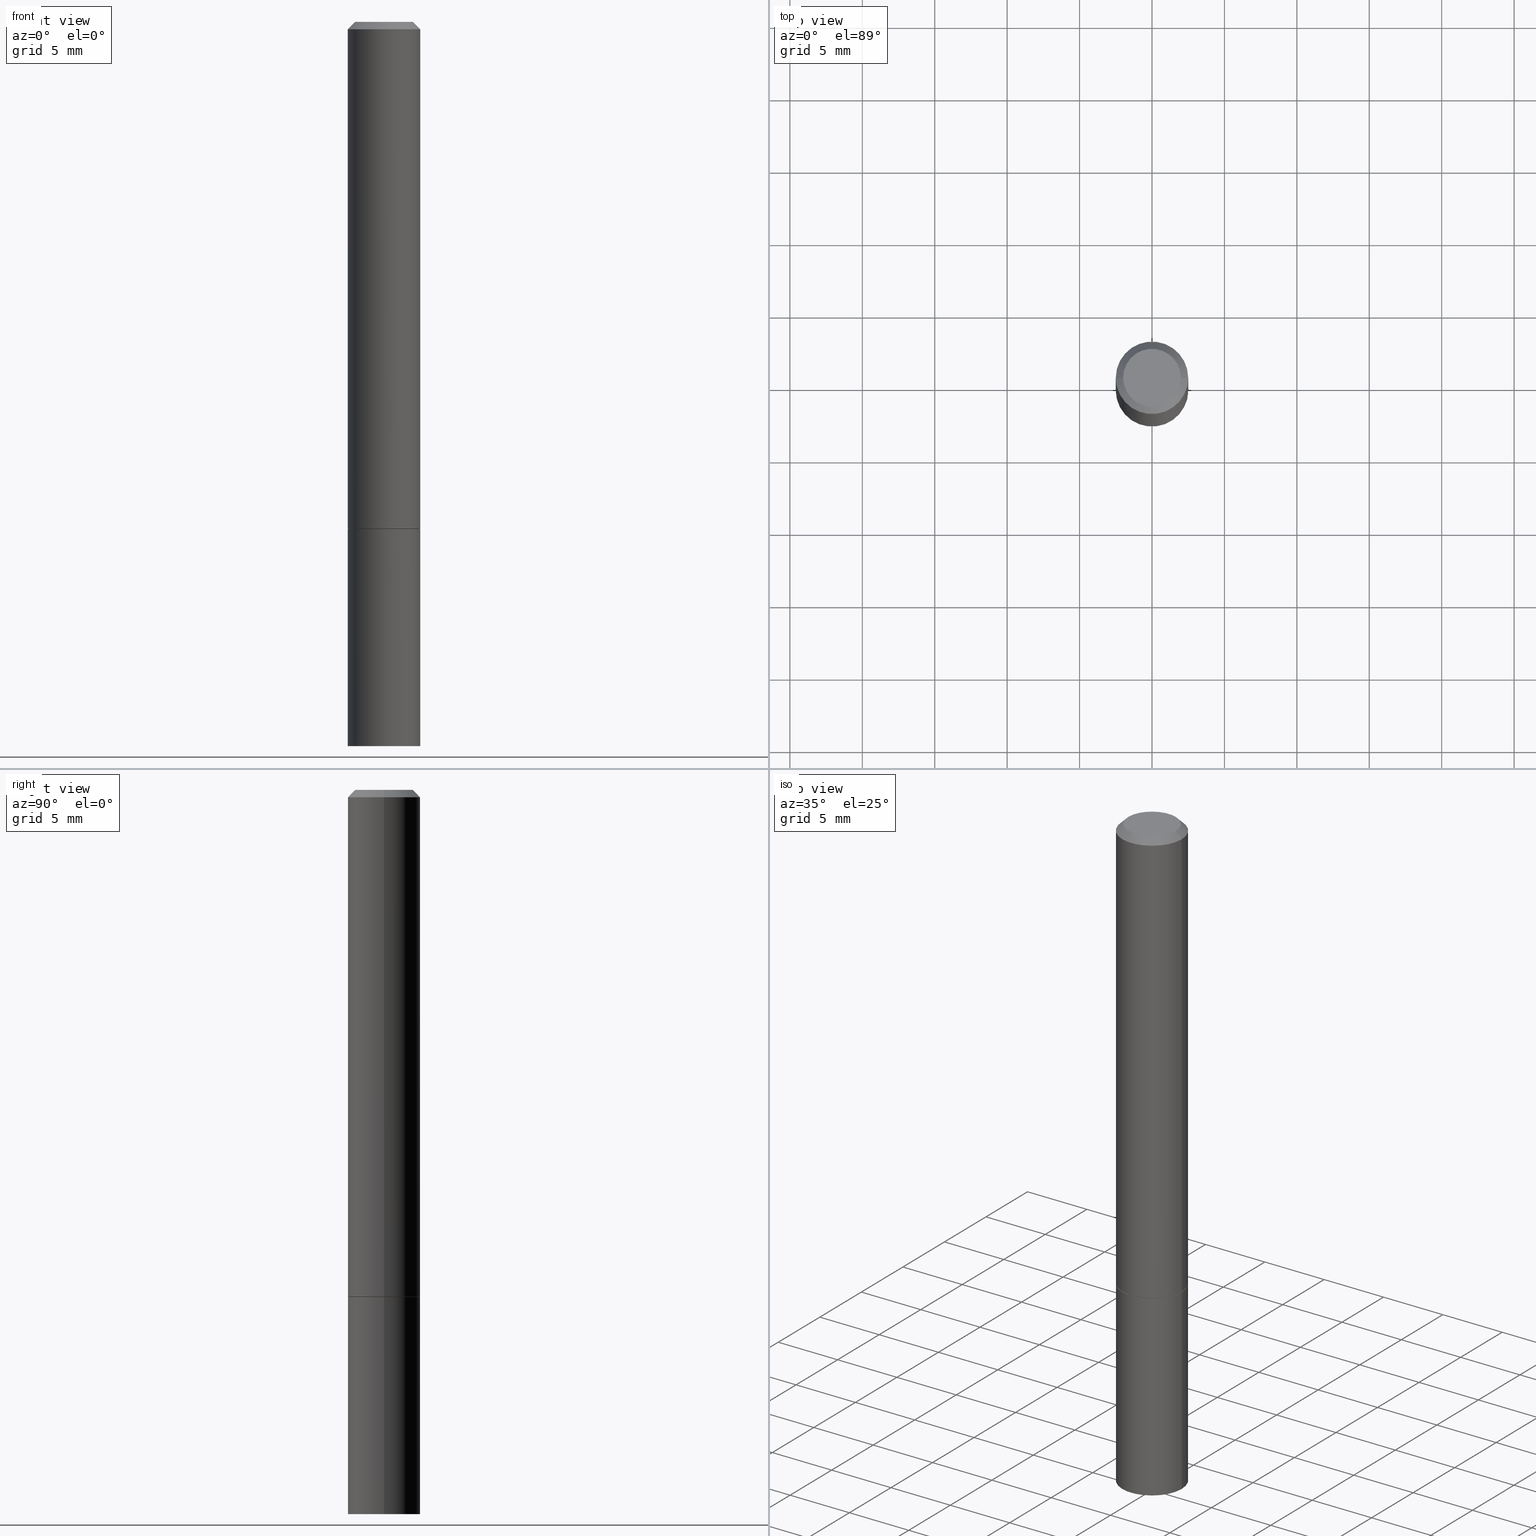
[diagram: canonical four-view strip — front | top / right | iso, engineering-drawing reading convention]
A machine part, canonical four-view strip (front | top / right | iso — engineering-drawing reading convention). The complete STEP part file that produces these views, byte-faithful:
ISO-10303-21;
HEADER;
FILE_DESCRIPTION (( 'STEP AP203' ),
    '1' );
FILE_NAME ('83073.STEP',
    '2024-02-29T23:24:01',
    ( '' ),
    ( '' ),
    'SwSTEP 2.0',
    'SolidWorks 2023',
    '' );
FILE_SCHEMA (( 'CONFIG_CONTROL_DESIGN' ));
ENDSEC;

DATA;
#1 = APPROVAL_STATUS ( 'not_yet_approved' ) ;
#2 = VECTOR ( 'NONE', #243, 39.37007874015748143 ) ;
#3 = ORIENTED_EDGE ( 'NONE', *, *, #264, .F. ) ;
#4 = CALENDAR_DATE ( 2024, 29, 2 ) ;
#5 = CARTESIAN_POINT ( 'NONE',  ( 3.367165999236314681E-29, -4.807420655453126643E-15, -1.376900000000000013 ) ) ;
#6 = CARTESIAN_POINT ( 'NONE',  ( 0.09744999999999999496, -5.491401849732496985E-15, -1.377900000000000125 ) ) ;
#7 = DATE_AND_TIME ( #195, #347 ) ;
#8 = LINE ( 'NONE', #6, #16 ) ;
#9 = CC_DESIGN_PERSON_AND_ORGANIZATION_ASSIGNMENT ( #281, #136, ( #229 ) ) ;
#10 = CARTESIAN_POINT ( 'NONE',  ( -0.09844999999999999585, -5.142417252796532568E-15, -1.968500000000000139 ) ) ;
#11 = FACE_OUTER_BOUND ( 'NONE', #297, .T. ) ;
#12 =( GEOMETRIC_REPRESENTATION_CONTEXT ( 3 ) GLOBAL_UNCERTAINTY_ASSIGNED_CONTEXT ( ( #95 ) ) GLOBAL_UNIT_ASSIGNED_CONTEXT ( ( #69, #184, #134 ) ) REPRESENTATION_CONTEXT ( 'NONE', 'WORKASPACE' ) );
#13 = ORGANIZATION ( 'UNSPECIFIED', 'UNSPECIFIED', '' ) ;
#14 = CC_DESIGN_PERSON_AND_ORGANIZATION_ASSIGNMENT ( #202, #197, ( #356 ) ) ;
#15 = DIRECTION ( 'NONE',  ( -2.445468806185136597E-29, 3.491481338843145583E-15, 1.000000000000000000 ) ) ;
#16 = VECTOR ( 'NONE', #231, 39.37007874015748143 ) ;
#17 = CARTESIAN_POINT ( 'NONE',  ( 5.478134220644863581E-16, 0.07844999999999982543, -2.739067110322441651E-16 ) ) ;
#18 = EDGE_CURVE ( 'NONE', #353, #139, #183, .T. ) ;
#19 = DIRECTION ( 'NONE',  ( 2.438088387897960049E-29, -3.491481338843145188E-15, -1.000000000000000000 ) ) ;
#20 = ORIENTED_EDGE ( 'NONE', *, *, #42, .T. ) ;
#21 = DIRECTION ( 'NONE',  ( 1.000000000000000000, -6.982962677686266711E-15, 0.000000000000000000 ) ) ;
#22 = ORIENTED_EDGE ( 'NONE', *, *, #67, .T. ) ;
#23 = CLOSED_SHELL ( 'NONE', ( #242, #237, #329, #343 ) ) ;
#24 = CIRCLE ( 'NONE', #101, 0.09844999999999999585 ) ;
#25 = ADVANCED_FACE ( 'NONE', ( #156 ), #174, .T. ) ;
#26 = DIRECTION ( 'NONE',  ( 1.000000000000000000, -6.982962677686266711E-15, 4.876176775795936353E-29 ) ) ;
#27 = DIRECTION ( 'NONE',  ( -2.445468806185136597E-29, 3.491481338843145583E-15, 1.000000000000000000 ) ) ;
#28 = SECURITY_CLASSIFICATION_LEVEL ( 'unclassified' ) ;
#29 = ORIENTED_EDGE ( 'NONE', *, *, #258, .F. ) ;
#30 = DATE_AND_TIME ( #341, #262 ) ;
#31 = VERTEX_POINT ( 'NONE', #133 ) ;
#32 = COORDINATED_UNIVERSAL_TIME_OFFSET ( 5, 0, .BEHIND. ) ;
#33 = CARTESIAN_POINT ( 'NONE',  ( 0.09844999999999980156, -7.452456546574689274E-16, -0.02000000000000003164 ) ) ;
#34 = DIRECTION ( 'NONE',  ( -1.000000000000000000, 6.982962677686266711E-15, 0.000000000000000000 ) ) ;
#35 = CARTESIAN_POINT ( 'NONE',  ( -0.09844999999999980156, 6.176430488413486702E-16, -0.02000000000000003164 ) ) ;
#36 = AXIS2_PLACEMENT_3D ( 'NONE', #277, #27, #250 ) ;
#37 = DIRECTION ( 'NONE',  ( 1.000000000000000000, -6.982962677686265922E-15, 4.876176775795936914E-29 ) ) ;
#38 = MANIFOLD_SOLID_BREP ( 'Body-Move/Copy2[2]', #70 ) ;
#39 = DIRECTION ( 'NONE',  ( 1.000000000000000000, -6.982962677686266711E-15, 0.000000000000000000 ) ) ;
#40 = MANIFOLD_SOLID_BREP ( 'Body-Move/Copy2[1]', #23 ) ;
#41 = AXIS2_PLACEMENT_3D ( 'NONE', #236, #147, #348 ) ;
#42 = EDGE_CURVE ( 'NONE', #302, #209, #284, .T. ) ;
#43 = PLANE ( 'NONE',  #96 ) ;
#44 = VECTOR ( 'NONE', #254, 39.37007874015748143 ) ;
#45 = LINE ( 'NONE', #152, #2 ) ;
#46 = DIRECTION ( 'NONE',  ( 1.000000000000000000, -6.982962677686265922E-15, 0.000000000000000000 ) ) ;
#47 = EDGE_LOOP ( 'NONE', ( #308, #354, #105, #50 ) ) ;
#48 = VECTOR ( 'NONE', #103, 39.37007874015748143 ) ;
#49 = COORDINATED_UNIVERSAL_TIME_OFFSET ( 5, 0, .BEHIND. ) ;
#50 = ORIENTED_EDGE ( 'NONE', *, *, #130, .F. ) ;
#51 = DATE_TIME_ROLE ( 'classification_date' ) ;
#52 = ORIENTED_EDGE ( 'NONE', *, *, #208, .T. ) ;
#53 = COORDINATED_UNIVERSAL_TIME_OFFSET ( 5, 0, .BEHIND. ) ;
#54 = APPROVAL ( #309, 'UNSPECIFIED' ) ;
#55 = ORIENTED_EDGE ( 'NONE', *, *, #191, .T. ) ;
#56 = DATE_AND_TIME ( #141, #352 ) ;
#57 = FACE_OUTER_BOUND ( 'NONE', #66, .T. ) ;
#58 = DATE_AND_TIME ( #138, #168 ) ;
#59 = CARTESIAN_POINT ( 'NONE',  ( -0.09744999999999999496, -4.113189786445530146E-15, -1.377900000000000125 ) ) ;
#60 = ADVANCED_FACE ( 'NONE', ( #364 ), #338, .T. ) ;
#61 = CYLINDRICAL_SURFACE ( 'NONE', #260, 0.09844999999999988483 ) ;
#62 = DIRECTION ( 'NONE',  ( 1.000000000000000000, -6.982962677686266711E-15, 0.000000000000000000 ) ) ;
#63 = DIRECTION ( 'NONE',  ( -2.445468806185136597E-29, 3.491481338843145583E-15, 1.000000000000000000 ) ) ;
#64 = ADVANCED_FACE ( 'NONE', ( #57 ), #153, .T. ) ;
#65 = VECTOR ( 'NONE', #131, 39.37007874015748143 ) ;
#66 = EDGE_LOOP ( 'NONE', ( #75, #22, #279, #181 ) ) ;
#67 = EDGE_CURVE ( 'NONE', #209, #322, #204, .T. ) ;
#68 = CARTESIAN_POINT ( 'NONE',  ( 4.813905344975441835E-29, -6.872981015512731707E-15, -1.968500000000000139 ) ) ;
#69 =( CONVERSION_BASED_UNIT ( 'INCH', #301 ) LENGTH_UNIT ( ) NAMED_UNIT ( #326 ) );
#70 = CLOSED_SHELL ( 'NONE', ( #60, #104, #64, #109, #176, #25, #296, #363 ) ) ;
#71 = AXIS2_PLACEMENT_3D ( 'NONE', #256, #291, #62 ) ;
#72 = ORIENTED_EDGE ( 'NONE', *, *, #273, .T. ) ;
#73 = DIRECTION ( 'NONE',  ( 2.438088387897960049E-29, -3.491481338843145188E-15, -1.000000000000000000 ) ) ;
#74 = EDGE_CURVE ( 'NONE', #160, #223, #116, .T. ) ;
#75 = ORIENTED_EDGE ( 'NONE', *, *, #191, .F. ) ;
#76 = PERSON_AND_ORGANIZATION ( #349, #13 ) ;
#77 = CARTESIAN_POINT ( 'NONE',  ( 3.369611468042499724E-29, -4.810912136791970439E-15, -1.377900000000000125 ) ) ;
#78 = AXIS2_PLACEMENT_3D ( 'NONE', #77, #194, #305 ) ;
#79 = EDGE_LOOP ( 'NONE', ( #251, #98, #282, #216 ) ) ;
#80 = PRODUCT_RELATED_PRODUCT_CATEGORY ( 'detail', '', ( #280 ) ) ;
#81 = APPROVAL_ROLE ( '' ) ;
#82 = ORIENTED_EDGE ( 'NONE', *, *, #258, .T. ) ;
#83 = APPROVAL_STATUS ( 'not_yet_approved' ) ;
#84 = CARTESIAN_POINT ( 'NONE',  ( 4.890937612370280165E-31, -6.982962677686301470E-17, -0.02000000000000003164 ) ) ;
#85 = CIRCLE ( 'NONE', #318, 0.09844999999999999585 ) ;
#86 = DIRECTION ( 'NONE',  ( -1.000000000000000000, 6.982962677686266711E-15, 0.000000000000000000 ) ) ;
#87 = DIRECTION ( 'NONE',  ( -2.445468806185136597E-29, 3.491481338843145583E-15, 1.000000000000000000 ) ) ;
#88 = CARTESIAN_POINT ( 'NONE',  ( 4.890937612370280165E-31, -6.982962677686301470E-17, -0.02000000000000003164 ) ) ;
#89 = AXIS2_PLACEMENT_3D ( 'NONE', #169, #142, #346 ) ;
#90 = DIRECTION ( 'NONE',  ( -2.445468806185136597E-29, 3.491481338843145583E-15, 1.000000000000000000 ) ) ;
#91 = EDGE_CURVE ( 'NONE', #330, #322, #314, .T. ) ;
#92 = CC_DESIGN_APPROVAL ( #54, ( #356 ) ) ;
#93 = ORIENTED_EDGE ( 'NONE', *, *, #18, .T. ) ;
#94 = ORIENTED_EDGE ( 'NONE', *, *, #154, .T. ) ;
#95 = UNCERTAINTY_MEASURE_WITH_UNIT (LENGTH_MEASURE( 1.000000000000000082E-05 ), #69, 'distance_accuracy_value', 'NONE');
#96 = AXIS2_PLACEMENT_3D ( 'NONE', #17, #73, #294 ) ;
#97 = ORIENTED_EDGE ( 'NONE', *, *, #42, .F. ) ;
#98 = ORIENTED_EDGE ( 'NONE', *, *, #319, .T. ) ;
#99 = CARTESIAN_POINT ( 'NONE',  ( -0.07844999999999982543, 5.827282354529176128E-16, -3.953055038153092165E-30 ) ) ;
#100 = DIRECTION ( 'NONE',  ( -2.438088387897960049E-29, 3.491481338843145188E-15, 1.000000000000000000 ) ) ;
#101 = AXIS2_PLACEMENT_3D ( 'NONE', #261, #90, #118 ) ;
#102 = EDGE_LOOP ( 'NONE', ( #93, #247 ) ) ;
#103 = DIRECTION ( 'NONE',  ( -2.445468806185136877E-29, 3.491481338843145188E-15, 1.000000000000000000 ) ) ;
#104 = ADVANCED_FACE ( 'NONE', ( #206 ), #61, .T. ) ;
#105 = ORIENTED_EDGE ( 'NONE', *, *, #264, .T. ) ;
#106 = DIRECTION ( 'NONE',  ( -2.445468806185136597E-29, 3.491481338843145583E-15, 1.000000000000000000 ) ) ;
#107 = MECHANICAL_CONTEXT ( 'NONE', #335, 'mechanical' ) ;
#108 = CARTESIAN_POINT ( 'NONE',  ( 3.369611468042499724E-29, -4.810912136791970439E-15, -1.377900000000000125 ) ) ;
#109 = ADVANCED_FACE ( 'NONE', ( #287 ), #132, .T. ) ;
#110 = APPLICATION_PROTOCOL_DEFINITION ( 'international standard', 'config_control_design', 1994, #335 ) ;
#111 = ORIENTED_EDGE ( 'NONE', *, *, #154, .F. ) ;
#112 = APPROVAL_DATE_TIME ( #289, #161 ) ;
#113 = DIRECTION ( 'NONE',  ( -2.445468806185136877E-29, 3.491481338843145188E-15, 1.000000000000000000 ) ) ;
#114 = PERSON_AND_ORGANIZATION_ROLE ( 'design_supplier' ) ;
#115 = CARTESIAN_POINT ( 'NONE',  ( 0.09844999999999999585, -7.560453691130944267E-15, -1.968500000000000139 ) ) ;
#116 = CIRCLE ( 'NONE', #89, 0.09844999999999999585 ) ;
#117 = PERSON_AND_ORGANIZATION ( #349, #13 ) ;
#118 = DIRECTION ( 'NONE',  ( 1.000000000000000000, -6.982962677686265922E-15, 0.000000000000000000 ) ) ;
#119 = DIRECTION ( 'NONE',  ( -2.445468806185136597E-29, 3.491481338843145583E-15, 1.000000000000000000 ) ) ;
#120 = CARTESIAN_POINT ( 'NONE',  ( 0.000000000000000000, 0.000000000000000000, 0.000000000000000000 ) ) ;
#121 = EDGE_CURVE ( 'NONE', #129, #270, #351, .T. ) ;
#122 = VECTOR ( 'NONE', #350, 39.37007874015748143 ) ;
#123 = CC_DESIGN_PERSON_AND_ORGANIZATION_ASSIGNMENT ( #303, #307, ( #280 ) ) ;
#124 = DIRECTION ( 'NONE',  ( 1.000000000000000000, -6.982962677686265922E-15, 4.876176775795935793E-29 ) ) ;
#125 = CARTESIAN_POINT ( 'NONE',  ( 0.000000000000000000, 0.000000000000000000, 0.000000000000000000 ) ) ;
#126 = ADVANCED_BREP_SHAPE_REPRESENTATION ( '83073', ( #40, #38, #265 ), #12 ) ;
#127 = ORIENTED_EDGE ( 'NONE', *, *, #273, .F. ) ;
#128 = CARTESIAN_POINT ( 'NONE',  ( 0.000000000000000000, 0.000000000000000000, 0.000000000000000000 ) ) ;
#129 = VERTEX_POINT ( 'NONE', #59 ) ;
#130 = EDGE_CURVE ( 'NONE', #139, #353, #24, .T. ) ;
#131 = DIRECTION ( 'NONE',  ( -2.445468806185136877E-29, 3.491481338843145188E-15, 1.000000000000000000 ) ) ;
#132 = CONICAL_SURFACE ( 'NONE', #140, 0.09844999999999980156, 0.7853981633974469467 ) ;
#133 = CARTESIAN_POINT ( 'NONE',  ( -0.09844999999999998197, -1.739095817759174494E-15, -1.376900000000000013 ) ) ;
#134 =( NAMED_UNIT ( * ) SI_UNIT ( $, .STERADIAN. ) SOLID_ANGLE_UNIT ( ) );
#135 = VERTEX_POINT ( 'NONE', #35 ) ;
#136 = PERSON_AND_ORGANIZATION_ROLE ( 'creator' ) ;
#137 = EDGE_LOOP ( 'NONE', ( #272, #239, #190, #3 ) ) ;
#138 = CALENDAR_DATE ( 2024, 29, 2 ) ;
#139 = VERTEX_POINT ( 'NONE', #172 ) ;
#140 = AXIS2_PLACEMENT_3D ( 'NONE', #84, #203, #86 ) ;
#141 = CALENDAR_DATE ( 2024, 29, 2 ) ;
#142 = DIRECTION ( 'NONE',  ( -2.445468806185136597E-29, 3.491481338843145583E-15, 1.000000000000000000 ) ) ;
#143 = DIRECTION ( 'NONE',  ( -2.445468806185136597E-29, 3.491481338843145583E-15, 1.000000000000000000 ) ) ;
#144 = EDGE_CURVE ( 'NONE', #330, #31, #186, .T. ) ;
#145 = LINE ( 'NONE', #288, #359 ) ;
#146 = LOCAL_TIME ( 18, 24, 1.000000000000000000, #227 ) ;
#147 = DIRECTION ( 'NONE',  ( -2.445468806185136597E-29, 3.491481338843145583E-15, 1.000000000000000000 ) ) ;
#148 = CARTESIAN_POINT ( 'NONE',  ( 0.07844999999999982543, -6.417258612913221441E-16, 4.159044147803931210E-30 ) ) ;
#149 = CIRCLE ( 'NONE', #201, 0.07844999999999982543 ) ;
#150 = EDGE_CURVE ( 'NONE', #223, #139, #145, .T. ) ;
#151 = DIRECTION ( 'NONE',  ( -2.445468806185136597E-29, 3.491481338843145583E-15, 1.000000000000000000 ) ) ;
#152 = CARTESIAN_POINT ( 'NONE',  ( -0.09744999999999999496, -4.118488240793752548E-15, -1.377900000000000125 ) ) ;
#153 = CONICAL_SURFACE ( 'NONE', #240, 0.09844999999999980156, 0.7853981633974469467 ) ;
#154 = EDGE_CURVE ( 'NONE', #31, #330, #215, .T. ) ;
#155 = PLANE ( 'NONE',  #210 ) ;
#156 = FACE_OUTER_BOUND ( 'NONE', #196, .T. ) ;
#157 = APPROVAL_PERSON_ORGANIZATION ( #199, #161, #167 ) ;
#158 = CARTESIAN_POINT ( 'NONE',  ( 0.09844999999999999585, -6.874726756182129545E-16, 4.800596035771099214E-30 ) ) ;
#159 = AXIS2_PLACEMENT_3D ( 'NONE', #246, #100, #124 ) ;
#160 = VERTEX_POINT ( 'NONE', #115 ) ;
#161 = APPROVAL ( #1, 'UNSPECIFIED' ) ;
#162 = APPROVAL_DATE_TIME ( #7, #293 ) ;
#163 = APPROVAL_PERSON_ORGANIZATION ( #76, #54, #81 ) ;
#164 = ORIENTED_EDGE ( 'NONE', *, *, #208, .F. ) ;
#165 = COORDINATED_UNIVERSAL_TIME_OFFSET ( 5, 0, .BEHIND. ) ;
#166 = ORIENTED_EDGE ( 'NONE', *, *, #249, .F. ) ;
#167 = APPROVAL_ROLE ( '' ) ;
#168 = LOCAL_TIME ( 18, 24, 1.000000000000000000, #53 ) ;
#169 = CARTESIAN_POINT ( 'NONE',  ( 4.813905344975441835E-29, -6.872981015512731707E-15, -1.968500000000000139 ) ) ;
#170 = DIRECTION ( 'NONE',  ( 1.000000000000000000, -6.982962677686266711E-15, 4.876176775795936353E-29 ) ) ;
#171 = EDGE_CURVE ( 'NONE', #322, #135, #175, .T. ) ;
#172 = CARTESIAN_POINT ( 'NONE',  ( -0.09844999999999999585, -5.142417252796532568E-15, -1.377900000000000125 ) ) ;
#173 = DIRECTION ( 'NONE',  ( -2.445468806185136597E-29, 3.491481338843145583E-15, 1.000000000000000000 ) ) ;
#174 = CONICAL_SURFACE ( 'NONE', #222, 0.09744999999999999496, 0.7853981633974056464 ) ;
#175 = CIRCLE ( 'NONE', #71, 0.09844999999999980156 ) ;
#176 = ADVANCED_FACE ( 'NONE', ( #316 ), #230, .T. ) ;
#177 = CARTESIAN_POINT ( 'NONE',  ( -0.09844999999999980156, 6.176430488413486702E-16, -0.02000000000000003164 ) ) ;
#178 = FACE_OUTER_BOUND ( 'NONE', #358, .T. ) ;
#179 = AXIS2_PLACEMENT_3D ( 'NONE', #276, #63, #21 ) ;
#180 = CC_DESIGN_DATE_AND_TIME_ASSIGNMENT ( #58, #51, ( #213 ) ) ;
#181 = ORIENTED_EDGE ( 'NONE', *, *, #233, .F. ) ;
#182 = PLANE ( 'NONE',  #159 ) ;
#183 = CIRCLE ( 'NONE', #274, 0.09844999999999999585 ) ;
#184 =( NAMED_UNIT ( * ) PLANE_ANGLE_UNIT ( ) SI_UNIT ( $, .RADIAN. ) );
#185 = EDGE_CURVE ( 'NONE', #270, #330, #8, .T. ) ;
#186 = CIRCLE ( 'NONE', #344, 0.09844999999999998197 ) ;
#187 = FACE_OUTER_BOUND ( 'NONE', #137, .T. ) ;
#188 = ORIENTED_EDGE ( 'NONE', *, *, #185, .T. ) ;
#189 = CARTESIAN_POINT ( 'NONE',  ( 0.09844999999999999585, -5.498384812410182999E-15, -1.377900000000000125 ) ) ;
#190 = ORIENTED_EDGE ( 'NONE', *, *, #18, .F. ) ;
#191 = EDGE_CURVE ( 'NONE', #209, #302, #149, .T. ) ;
#192 = CARTESIAN_POINT ( 'NONE',  ( 0.000000000000000000, 0.000000000000000000, 0.000000000000000000 ) ) ;
#193 = AXIS2_PLACEMENT_3D ( 'NONE', #259, #200, #170 ) ;
#194 = DIRECTION ( 'NONE',  ( -2.445468806185136597E-29, 3.491481338843145583E-15, 1.000000000000000000 ) ) ;
#195 = CALENDAR_DATE ( 2024, 29, 2 ) ;
#196 = EDGE_LOOP ( 'NONE', ( #127, #252, #188, #111 ) ) ;
#197 = PERSON_AND_ORGANIZATION_ROLE ( 'creator' ) ;
#198 = ORIENTED_EDGE ( 'NONE', *, *, #67, .F. ) ;
#199 = PERSON_AND_ORGANIZATION ( #349, #13 ) ;
#200 = DIRECTION ( 'NONE',  ( -2.445468806185136597E-29, 3.491481338843145583E-15, 1.000000000000000000 ) ) ;
#201 = AXIS2_PLACEMENT_3D ( 'NONE', #345, #87, #37 ) ;
#202 = PERSON_AND_ORGANIZATION ( #349, #13 ) ;
#203 = DIRECTION ( 'NONE',  ( 2.445468806185136597E-29, -3.491481338843145583E-15, -1.000000000000000000 ) ) ;
#204 = LINE ( 'NONE', #33, #44 ) ;
#205 = DIRECTION ( 'NONE',  ( -2.445468806185136597E-29, 3.491481338843145583E-15, 1.000000000000000000 ) ) ;
#206 = FACE_OUTER_BOUND ( 'NONE', #79, .T. ) ;
#207 = CC_DESIGN_APPROVAL ( #293, ( #229 ) ) ;
#208 = EDGE_CURVE ( 'NONE', #270, #129, #327, .T. ) ;
#209 = VERTEX_POINT ( 'NONE', #148 ) ;
#210 = AXIS2_PLACEMENT_3D ( 'NONE', #360, #19, #331 ) ;
#211 = DIRECTION ( 'NONE',  ( -2.445468806185136597E-29, 3.491481338843145583E-15, 1.000000000000000000 ) ) ;
#212 = FACE_OUTER_BOUND ( 'NONE', #102, .T. ) ;
#213 = SECURITY_CLASSIFICATION ( '', '', #28 ) ;
#214 = CARTESIAN_POINT ( 'NONE',  ( 0.09844999999999980156, -7.452456546574689274E-16, -0.02000000000000003164 ) ) ;
#215 = CIRCLE ( 'NONE', #295, 0.09844999999999998197 ) ;
#216 = ORIENTED_EDGE ( 'NONE', *, *, #91, .F. ) ;
#217 = DIRECTION ( 'NONE',  ( -1.000000000000000000, 6.982962677686265922E-15, -4.876176775795935793E-29 ) ) ;
#218 = DIRECTION ( 'NONE',  ( 1.000000000000000000, -6.982962677686264344E-15, 0.000000000000000000 ) ) ;
#219 = DIRECTION ( 'NONE',  ( 1.000000000000000000, -6.982962677686266711E-15, 4.876176775795936353E-29 ) ) ;
#220 = EDGE_LOOP ( 'NONE', ( #198, #97, #339, #82 ) ) ;
#221 = PERSON_AND_ORGANIZATION_ROLE ( 'classification_officer' ) ;
#222 = AXIS2_PLACEMENT_3D ( 'NONE', #108, #106, #218 ) ;
#223 = VERTEX_POINT ( 'NONE', #10 ) ;
#224 = SHAPE_DEFINITION_REPRESENTATION ( #285, #126 ) ;
#225 = ORIENTED_EDGE ( 'NONE', *, *, #74, .F. ) ;
#226 = CC_DESIGN_PERSON_AND_ORGANIZATION_ASSIGNMENT ( #278, #114, ( #229 ) ) ;
#227 = COORDINATED_UNIVERSAL_TIME_OFFSET ( 5, 0, .BEHIND. ) ;
#228 = APPROVAL_PERSON_ORGANIZATION ( #365, #293, #255 ) ;
#229 = PRODUCT_DEFINITION_FORMATION_WITH_SPECIFIED_SOURCE ( 'ANY', '', #280, .NOT_KNOWN. ) ;
#230 = CYLINDRICAL_SURFACE ( 'NONE', #193, 0.09844999999999988483 ) ;
#231 = DIRECTION ( 'NONE',  ( 0.7071067811865173747, -2.468850131081940727E-15, 0.7071067811865776598 ) ) ;
#232 = AXIS2_PLACEMENT_3D ( 'NONE', #128, #15, #219 ) ;
#233 = EDGE_CURVE ( 'NONE', #302, #135, #235, .T. ) ;
#234 = CARTESIAN_POINT ( 'NONE',  ( 3.367165999236314681E-29, -4.807420655453126643E-15, -1.376900000000000013 ) ) ;
#235 = LINE ( 'NONE', #177, #267 ) ;
#236 = CARTESIAN_POINT ( 'NONE',  ( 3.369611468042499724E-29, -4.810912136791970439E-15, -1.377900000000000125 ) ) ;
#237 = ADVANCED_FACE ( 'NONE', ( #11 ), #155, .T. ) ;
#238 = EDGE_LOOP ( 'NONE', ( #245, #94, #333, #29 ) ) ;
#239 = ORIENTED_EDGE ( 'NONE', *, *, #150, .T. ) ;
#240 = AXIS2_PLACEMENT_3D ( 'NONE', #88, #290, #34 ) ;
#241 =( LENGTH_UNIT ( ) NAMED_UNIT ( * ) SI_UNIT ( $, .METRE. ) );
#242 = ADVANCED_FACE ( 'NONE', ( #187 ), #269, .T. ) ;
#243 = DIRECTION ( 'NONE',  ( -0.7071067811865173747, 7.493145998870245297E-15, 0.7071067811865776598 ) ) ;
#244 = CARTESIAN_POINT ( 'NONE',  ( 0.09744999999999999496, -5.491401849732496985E-15, -1.377900000000000125 ) ) ;
#245 = ORIENTED_EDGE ( 'NONE', *, *, #319, .F. ) ;
#246 = CARTESIAN_POINT ( 'NONE',  ( 3.369611468042499724E-29, -4.810912136791970439E-15, -1.377900000000000125 ) ) ;
#247 = ORIENTED_EDGE ( 'NONE', *, *, #130, .T. ) ;
#248 = CARTESIAN_POINT ( 'NONE',  ( -0.09844999999999988483, 6.995293233558178146E-16, -4.842691596355949137E-30 ) ) ;
#249 = EDGE_CURVE ( 'NONE', #223, #160, #85, .T. ) ;
#250 = DIRECTION ( 'NONE',  ( 1.000000000000000000, -6.982962677686265922E-15, 4.876176775795936914E-29 ) ) ;
#251 = ORIENTED_EDGE ( 'NONE', *, *, #144, .T. ) ;
#252 = ORIENTED_EDGE ( 'NONE', *, *, #121, .T. ) ;
#253 = DIRECTION ( 'NONE',  ( 1.000000000000000000, 0.000000000000000000, 0.000000000000000000 ) ) ;
#254 = DIRECTION ( 'NONE',  ( 0.7071067811865465735, -7.319954787623252890E-15, -0.7071067811865484609 ) ) ;
#255 = APPROVAL_ROLE ( '' ) ;
#256 = CARTESIAN_POINT ( 'NONE',  ( 4.890937612370280165E-31, -6.982962677686301470E-17, -0.02000000000000003164 ) ) ;
#257 = APPROVAL_DATE_TIME ( #30, #54 ) ;
#258 = EDGE_CURVE ( 'NONE', #135, #322, #310, .T. ) ;
#259 = CARTESIAN_POINT ( 'NONE',  ( 0.000000000000000000, 0.000000000000000000, 0.000000000000000000 ) ) ;
#260 = AXIS2_PLACEMENT_3D ( 'NONE', #120, #173, #342 ) ;
#261 = CARTESIAN_POINT ( 'NONE',  ( 3.369611468042499724E-29, -4.810912136791970439E-15, -1.377900000000000125 ) ) ;
#262 = LOCAL_TIME ( 18, 24, 1.000000000000000000, #32 ) ;
#263 = DIRECTION ( 'NONE',  ( 1.000000000000000000, -6.982962677686264344E-15, 0.000000000000000000 ) ) ;
#264 = EDGE_CURVE ( 'NONE', #160, #353, #357, .T. ) ;
#265 = AXIS2_PLACEMENT_3D ( 'NONE', #192, #334, #253 ) ;
#266 = LINE ( 'NONE', #248, #48 ) ;
#267 = VECTOR ( 'NONE', #292, 39.37007874015748143 ) ;
#268 = FACE_OUTER_BOUND ( 'NONE', #47, .T. ) ;
#269 = CYLINDRICAL_SURFACE ( 'NONE', #232, 0.09844999999999999585 ) ;
#270 = VERTEX_POINT ( 'NONE', #244 ) ;
#271 = DIRECTION ( 'NONE',  ( 2.438088387897960049E-29, -3.491481338843145188E-15, -1.000000000000000000 ) ) ;
#272 = ORIENTED_EDGE ( 'NONE', *, *, #74, .T. ) ;
#273 = EDGE_CURVE ( 'NONE', #129, #31, #45, .T. ) ;
#274 = AXIS2_PLACEMENT_3D ( 'NONE', #300, #366, #46 ) ;
#275 = CC_DESIGN_APPROVAL ( #161, ( #213 ) ) ;
#276 = CARTESIAN_POINT ( 'NONE',  ( 4.890937612370280165E-31, -6.982962677686301470E-17, -0.02000000000000003164 ) ) ;
#277 = CARTESIAN_POINT ( 'NONE',  ( 0.000000000000000000, 0.000000000000000000, 0.000000000000000000 ) ) ;
#278 = PERSON_AND_ORGANIZATION ( #349, #13 ) ;
#279 = ORIENTED_EDGE ( 'NONE', *, *, #171, .T. ) ;
#280 = PRODUCT ( '83073', '83073', '', ( #107 ) ) ;
#281 = PERSON_AND_ORGANIZATION ( #349, #13 ) ;
#282 = ORIENTED_EDGE ( 'NONE', *, *, #171, .F. ) ;
#283 = DATE_TIME_ROLE ( 'creation_date' ) ;
#284 = CIRCLE ( 'NONE', #36, 0.07844999999999982543 ) ;
#285 = PRODUCT_DEFINITION_SHAPE ( 'NONE', 'NONE',  #356 ) ;
#286 = AXIS2_PLACEMENT_3D ( 'NONE', #328, #271, #217 ) ;
#287 = FACE_OUTER_BOUND ( 'NONE', #220, .T. ) ;
#288 = CARTESIAN_POINT ( 'NONE',  ( -0.09844999999999999585, 6.995293233558186035E-16, -4.842691596355954042E-30 ) ) ;
#289 = DATE_AND_TIME ( #4, #146 ) ;
#290 = DIRECTION ( 'NONE',  ( 2.445468806185136597E-29, -3.491481338843145583E-15, -1.000000000000000000 ) ) ;
#291 = DIRECTION ( 'NONE',  ( -2.445468806185136597E-29, 3.491481338843145583E-15, 1.000000000000000000 ) ) ;
#292 = DIRECTION ( 'NONE',  ( -0.7071067811865465735, 2.468850131082246805E-15, -0.7071067811865484609 ) ) ;
#293 = APPROVAL ( #83, 'UNSPECIFIED' ) ;
#294 = DIRECTION ( 'NONE',  ( -1.000000000000000000, 6.982962677686265922E-15, -4.876176775795935793E-29 ) ) ;
#295 = AXIS2_PLACEMENT_3D ( 'NONE', #234, #205, #317 ) ;
#296 = ADVANCED_FACE ( 'NONE', ( #178 ), #182, .F. ) ;
#297 = EDGE_LOOP ( 'NONE', ( #225, #166 ) ) ;
#298 = FACE_OUTER_BOUND ( 'NONE', #340, .T. ) ;
#299 = PLANE ( 'NONE',  #286 ) ;
#300 = CARTESIAN_POINT ( 'NONE',  ( 3.369611468042499724E-29, -4.810912136791970439E-15, -1.377900000000000125 ) ) ;
#301 = LENGTH_MEASURE_WITH_UNIT ( LENGTH_MEASURE( 0.02539999999999999897 ), #241 );
#302 = VERTEX_POINT ( 'NONE', #99 ) ;
#303 = PERSON_AND_ORGANIZATION ( #349, #13 ) ;
#304 = AXIS2_PLACEMENT_3D ( 'NONE', #125, #211, #26 ) ;
#305 = DIRECTION ( 'NONE',  ( 1.000000000000000000, -6.982962677686264344E-15, 0.000000000000000000 ) ) ;
#306 = ORIENTED_EDGE ( 'NONE', *, *, #144, .F. ) ;
#307 = PERSON_AND_ORGANIZATION_ROLE ( 'design_owner' ) ;
#308 = ORIENTED_EDGE ( 'NONE', *, *, #150, .F. ) ;
#309 = APPROVAL_STATUS ( 'not_yet_approved' ) ;
#310 = CIRCLE ( 'NONE', #179, 0.09844999999999980156 ) ;
#311 = CARTESIAN_POINT ( 'NONE',  ( 0.09844999999999988483, -6.874726756182121656E-16, 4.800596035771093609E-30 ) ) ;
#312 = APPLICATION_PROTOCOL_DEFINITION ( 'international standard', 'config_control_design', 1994, #332 ) ;
#313 = DESIGN_CONTEXT ( 'detailed design', #332, 'design' ) ;
#314 = LINE ( 'NONE', #311, #122 ) ;
#315 = CC_DESIGN_DATE_AND_TIME_ASSIGNMENT ( #56, #283, ( #356 ) ) ;
#316 = FACE_OUTER_BOUND ( 'NONE', #238, .T. ) ;
#317 = DIRECTION ( 'NONE',  ( 1.000000000000000000, -6.982962677686266711E-15, 0.000000000000000000 ) ) ;
#318 = AXIS2_PLACEMENT_3D ( 'NONE', #68, #151, #355 ) ;
#319 = EDGE_CURVE ( 'NONE', #31, #135, #266, .T. ) ;
#320 = CARTESIAN_POINT ( 'NONE',  ( 3.369611468042499724E-29, -4.810912136791970439E-15, -1.377900000000000125 ) ) ;
#321 = CC_DESIGN_PERSON_AND_ORGANIZATION_ASSIGNMENT ( #117, #221, ( #213 ) ) ;
#322 = VERTEX_POINT ( 'NONE', #214 ) ;
#323 = AXIS2_PLACEMENT_3D ( 'NONE', #320, #119, #263 ) ;
#324 = ORIENTED_EDGE ( 'NONE', *, *, #121, .F. ) ;
#325 = CYLINDRICAL_SURFACE ( 'NONE', #304, 0.09844999999999999585 ) ;
#326 = DIMENSIONAL_EXPONENTS ( 1.000000000000000000, 0.000000000000000000, 0.000000000000000000, 0.000000000000000000, 0.000000000000000000, 0.000000000000000000, 0.000000000000000000 ) ;
#327 = CIRCLE ( 'NONE', #41, 0.09744999999999999496 ) ;
#328 = CARTESIAN_POINT ( 'NONE',  ( 6.874726756182465797E-16, 0.09844999999999518026, -1.377900000000000347 ) ) ;
#329 = ADVANCED_FACE ( 'NONE', ( #212 ), #299, .F. ) ;
#330 = VERTEX_POINT ( 'NONE', #362 ) ;
#331 = DIRECTION ( 'NONE',  ( -1.000000000000000000, 6.982962677686265922E-15, -4.876176775795935793E-29 ) ) ;
#332 = APPLICATION_CONTEXT ( 'configuration controlled 3d designs of mechanical parts and assemblies' ) ;
#333 = ORIENTED_EDGE ( 'NONE', *, *, #91, .T. ) ;
#334 = DIRECTION ( 'NONE',  ( 0.000000000000000000, 0.000000000000000000, 1.000000000000000000 ) ) ;
#335 = APPLICATION_CONTEXT ( 'configuration controlled 3d designs of mechanical parts and assemblies' ) ;
#336 = ORIENTED_EDGE ( 'NONE', *, *, #185, .F. ) ;
#337 = CC_DESIGN_SECURITY_CLASSIFICATION ( #213, ( #229 ) ) ;
#338 = CONICAL_SURFACE ( 'NONE', #78, 0.09744999999999999496, 0.7853981633974056464 ) ;
#339 = ORIENTED_EDGE ( 'NONE', *, *, #233, .T. ) ;
#340 = EDGE_LOOP ( 'NONE', ( #20, #55 ) ) ;
#341 = CALENDAR_DATE ( 2024, 29, 2 ) ;
#342 = DIRECTION ( 'NONE',  ( 1.000000000000000000, -6.982962677686266711E-15, 4.876176775795936353E-29 ) ) ;
#343 = ADVANCED_FACE ( 'NONE', ( #268 ), #325, .T. ) ;
#344 = AXIS2_PLACEMENT_3D ( 'NONE', #5, #143, #39 ) ;
#345 = CARTESIAN_POINT ( 'NONE',  ( 0.000000000000000000, 0.000000000000000000, 0.000000000000000000 ) ) ;
#346 = DIRECTION ( 'NONE',  ( 1.000000000000000000, -6.982962677686265922E-15, 0.000000000000000000 ) ) ;
#347 = LOCAL_TIME ( 18, 24, 1.000000000000000000, #165 ) ;
#348 = DIRECTION ( 'NONE',  ( 1.000000000000000000, -6.982962677686264344E-15, 0.000000000000000000 ) ) ;
#349 = PERSON ( 'UNSPECIFIED', 'UNSPECIFIED', 'UNSPECIFIED', ('UNSPECIFIED'), ('UNSPECIFIED'), ('UNSPECIFIED') ) ;
#350 = DIRECTION ( 'NONE',  ( -2.445468806185136877E-29, 3.491481338843145188E-15, 1.000000000000000000 ) ) ;
#351 = CIRCLE ( 'NONE', #323, 0.09744999999999999496 ) ;
#352 = LOCAL_TIME ( 18, 24, 1.000000000000000000, #49 ) ;
#353 = VERTEX_POINT ( 'NONE', #189 ) ;
#354 = ORIENTED_EDGE ( 'NONE', *, *, #249, .T. ) ;
#355 = DIRECTION ( 'NONE',  ( 1.000000000000000000, -6.982962677686265922E-15, 0.000000000000000000 ) ) ;
#356 = PRODUCT_DEFINITION ( 'UNKNOWN', '', #229, #313 ) ;
#357 = LINE ( 'NONE', #158, #65 ) ;
#358 = EDGE_LOOP ( 'NONE', ( #164, #324 ) ) ;
#359 = VECTOR ( 'NONE', #113, 39.37007874015748143 ) ;
#360 = CARTESIAN_POINT ( 'NONE',  ( 6.874726756182609764E-16, 0.09844999999999311247, -1.968500000000000361 ) ) ;
#361 = EDGE_LOOP ( 'NONE', ( #52, #72, #306, #336 ) ) ;
#362 = CARTESIAN_POINT ( 'NONE',  ( 0.09844999999999998197, -5.494893331071339992E-15, -1.376900000000000013 ) ) ;
#363 = ADVANCED_FACE ( 'NONE', ( #298 ), #43, .F. ) ;
#364 = FACE_OUTER_BOUND ( 'NONE', #361, .T. ) ;
#365 = PERSON_AND_ORGANIZATION ( #349, #13 ) ;
#366 = DIRECTION ( 'NONE',  ( -2.445468806185136597E-29, 3.491481338843145583E-15, 1.000000000000000000 ) ) ;
ENDSEC;
END-ISO-10303-21;
